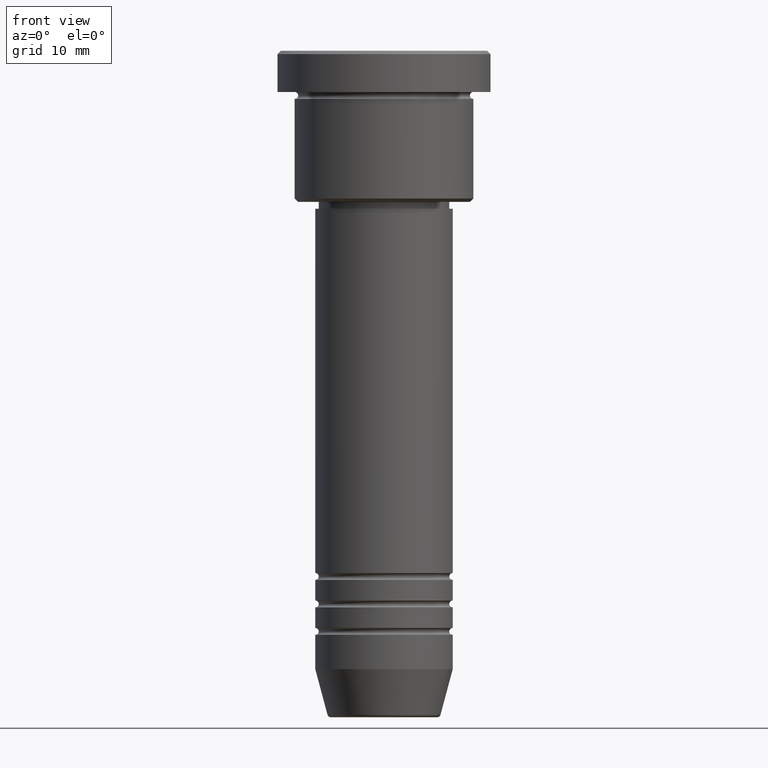
[diagram: clean part render]
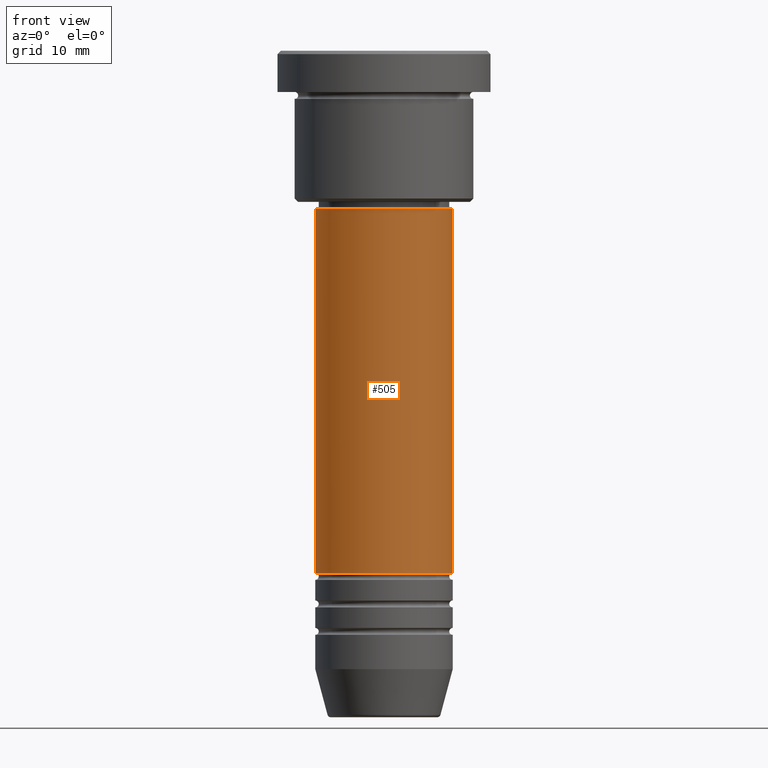
[diagram: same view with one face highlighted and labeled with its STEP entity id]
A machine part, front view. The second image highlights one B-rep face of the part: STEP entity #505.
In plain terms, the highlighted cylindrical surface (partial cylindrical patch) has radius 10 mm, axis along (-0, -0, 1).
Its self-contained STEP definition (entity closure, byte-faithful):
#11 = CARTESIAN_POINT ( 'NONE',  ( -9.999999999999998224, 1.224646799147353256E-15, -23.00000000000001421 ) ) ;
#80 = CIRCLE ( 'NONE', #823, 10.00000000000000178 ) ;
#83 = EDGE_CURVE ( 'NONE', #848, #720, #137, .T. ) ;
#86 = ORIENTED_EDGE ( 'NONE', *, *, #1012, .F. ) ;
#137 = LINE ( 'NONE', #499, #346 ) ;
#138 = AXIS2_PLACEMENT_3D ( 'NONE', #884, #876, #867 ) ;
#198 = EDGE_LOOP ( 'NONE', ( #86, #553, #958, #1028 ) ) ;
#212 = DIRECTION ( 'NONE',  ( 1.000000000000000000, 0.000000000000000000, 0.000000000000000000 ) ) ;
#243 = CARTESIAN_POINT ( 'NONE',  ( 0.000000000000000000, 0.000000000000000000, -75.99999999999988631 ) ) ;
#325 = FACE_OUTER_BOUND ( 'NONE', #198, .T. ) ;
#337 = DIRECTION ( 'NONE',  ( 1.000000000000000000, 0.000000000000000000, 0.000000000000000000 ) ) ;
#346 = VECTOR ( 'NONE', #766, 1000.000000000000000 ) ;
#351 = AXIS2_PLACEMENT_3D ( 'NONE', #666, #555, #212 ) ;
#395 = CARTESIAN_POINT ( 'NONE',  ( 10.00000000000000178, 0.000000000000000000, -75.99999999999988631 ) ) ;
#499 = CARTESIAN_POINT ( 'NONE',  ( 10.00000000000000000, 0.000000000000000000, 0.000000000000000000 ) ) ;
#505 = ADVANCED_FACE ( 'NONE', ( #325 ), #798, .T. ) ;
#553 = ORIENTED_EDGE ( 'NONE', *, *, #1065, .T. ) ;
#555 = DIRECTION ( 'NONE',  ( -0.000000000000000000, -0.000000000000000000, 1.000000000000000000 ) ) ;
#618 = CARTESIAN_POINT ( 'NONE',  ( 9.999999999999998224, 0.000000000000000000, -23.00000000000001421 ) ) ;
#634 = CIRCLE ( 'NONE', #351, 9.999999999999998224 ) ;
#666 = CARTESIAN_POINT ( 'NONE',  ( 0.000000000000000000, 0.000000000000000000, -23.00000000000001421 ) ) ;
#720 = VERTEX_POINT ( 'NONE', #618 ) ;
#759 = VERTEX_POINT ( 'NONE', #936 ) ;
#766 = DIRECTION ( 'NONE',  ( -0.000000000000000000, -0.000000000000000000, 1.000000000000000000 ) ) ;
#773 = LINE ( 'NONE', #790, #1036 ) ;
#788 = EDGE_CURVE ( 'NONE', #824, #720, #634, .T. ) ;
#790 = CARTESIAN_POINT ( 'NONE',  ( -10.00000000000000000, 1.224646799147353256E-15, 0.000000000000000000 ) ) ;
#798 = CYLINDRICAL_SURFACE ( 'NONE', #138, 10.00000000000000000 ) ;
#823 = AXIS2_PLACEMENT_3D ( 'NONE', #243, #1048, #337 ) ;
#824 = VERTEX_POINT ( 'NONE', #11 ) ;
#848 = VERTEX_POINT ( 'NONE', #395 ) ;
#867 = DIRECTION ( 'NONE',  ( 1.000000000000000000, 0.000000000000000000, 0.000000000000000000 ) ) ;
#868 = DIRECTION ( 'NONE',  ( -0.000000000000000000, -0.000000000000000000, 1.000000000000000000 ) ) ;
#876 = DIRECTION ( 'NONE',  ( -0.000000000000000000, -0.000000000000000000, 1.000000000000000000 ) ) ;
#884 = CARTESIAN_POINT ( 'NONE',  ( 0.000000000000000000, 0.000000000000000000, 0.000000000000000000 ) ) ;
#936 = CARTESIAN_POINT ( 'NONE',  ( -10.00000000000000178, 1.224646799147353454E-15, -75.99999999999988631 ) ) ;
#958 = ORIENTED_EDGE ( 'NONE', *, *, #83, .T. ) ;
#1012 = EDGE_CURVE ( 'NONE', #759, #824, #773, .T. ) ;
#1028 = ORIENTED_EDGE ( 'NONE', *, *, #788, .F. ) ;
#1036 = VECTOR ( 'NONE', #868, 1000.000000000000000 ) ;
#1048 = DIRECTION ( 'NONE',  ( -0.000000000000000000, -0.000000000000000000, 1.000000000000000000 ) ) ;
#1065 = EDGE_CURVE ( 'NONE', #759, #848, #80, .T. ) ;